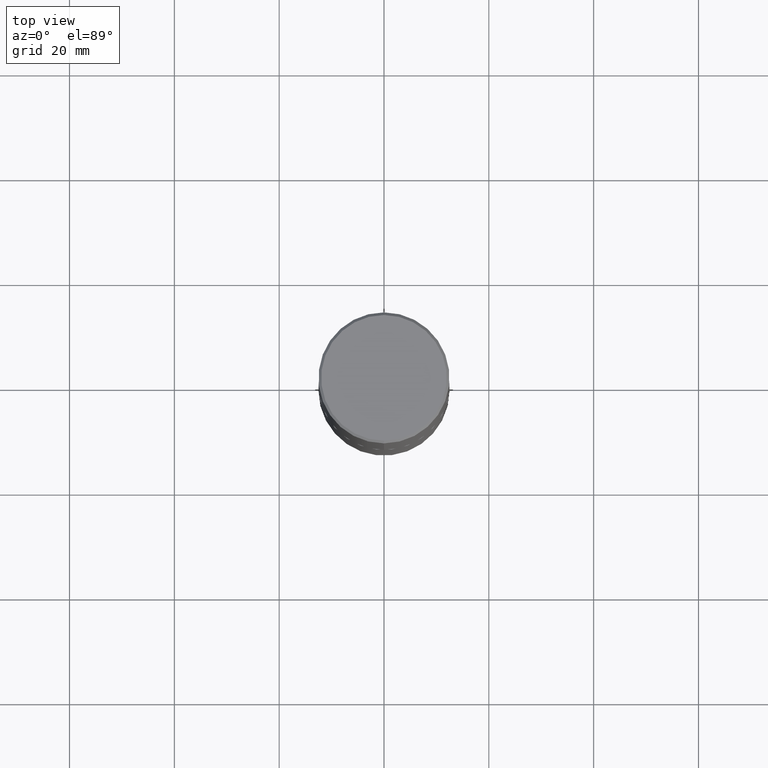
[diagram: clean part render]
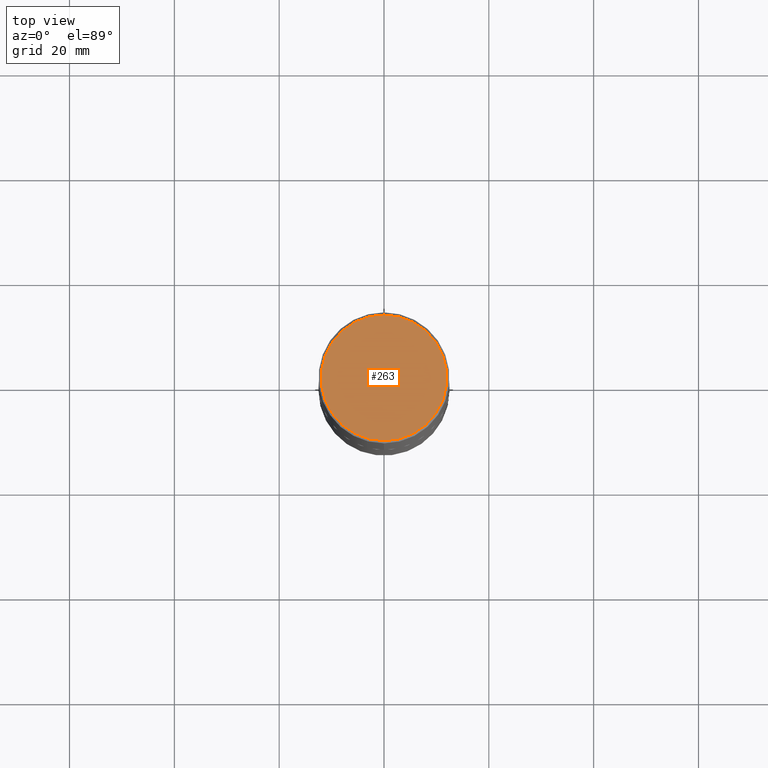
[diagram: same view with one face highlighted and labeled with its STEP entity id]
A machine part, top view. The second image highlights one B-rep face of the part: STEP entity #263.
In plain terms, the highlighted planar face has unit normal (0, -0, -1).
Its self-contained STEP definition (entity closure, byte-faithful):
#21 = CIRCLE ( 'NONE', #165, 0.4721499999999997921 ) ;
#32 = EDGE_CURVE ( 'NONE', #118, #287, #21, .T. ) ;
#35 = DIRECTION ( 'NONE',  ( -6.982962677686265922E-15, -1.000000000000000000, 3.491824508290437824E-15 ) ) ;
#59 = ORIENTED_EDGE ( 'NONE', *, *, #298, .T. ) ;
#67 = DIRECTION ( 'NONE',  ( -2.445229172240879899E-29, 3.491824508290438219E-15, 1.000000000000000000 ) ) ;
#109 = DIRECTION ( 'NONE',  ( -6.982962677686265922E-15, -1.000000000000000000, 3.491824508290437824E-15 ) ) ;
#118 = VERTEX_POINT ( 'NONE', #362 ) ;
#141 = ORIENTED_EDGE ( 'NONE', *, *, #32, .T. ) ;
#165 = AXIS2_PLACEMENT_3D ( 'NONE', #235, #67, #35 ) ;
#214 = EDGE_LOOP ( 'NONE', ( #59, #141 ) ) ;
#235 = CARTESIAN_POINT ( 'NONE',  ( -6.892706176078369160E-45, 9.842889422106222579E-31, 2.818838518011663701E-16 ) ) ;
#236 = CARTESIAN_POINT ( 'NONE',  ( 3.297005828269569180E-15, 0.4721499999999997921, -1.507723015688746393E-15 ) ) ;
#263 = ADVANCED_FACE ( 'NONE', ( #293 ), #325, .F. ) ;
#269 = DIRECTION ( 'NONE',  ( -2.445229172240879899E-29, 3.491824508290438219E-15, 1.000000000000000000 ) ) ;
#275 = DIRECTION ( 'NONE',  ( 2.445229172240879339E-29, -3.491824508290438613E-15, -1.000000000000000000 ) ) ;
#287 = VERTEX_POINT ( 'NONE', #332 ) ;
#293 = FACE_OUTER_BOUND ( 'NONE', #214, .T. ) ;
#296 = CARTESIAN_POINT ( 'NONE',  ( -6.892706176078369160E-45, 9.842889422106222579E-31, 2.818838518011663701E-16 ) ) ;
#298 = EDGE_CURVE ( 'NONE', #287, #118, #401, .T. ) ;
#306 = DIRECTION ( 'NONE',  ( 6.982962677686265922E-15, 1.000000000000000000, -3.491824508290438613E-15 ) ) ;
#325 = PLANE ( 'NONE',  #381 ) ;
#332 = CARTESIAN_POINT ( 'NONE',  ( 3.366835455046432873E-15, 0.4721499999999997921, -1.366781089788163134E-15 ) ) ;
#353 = AXIS2_PLACEMENT_3D ( 'NONE', #296, #269, #109 ) ;
#362 = CARTESIAN_POINT ( 'NONE',  ( -3.307789109625542536E-15, -0.4721499999999997921, 1.930548793390495776E-15 ) ) ;
#381 = AXIS2_PLACEMENT_3D ( 'NONE', #236, #275, #306 ) ;
#401 = CIRCLE ( 'NONE', #353, 0.4721499999999997921 ) ;